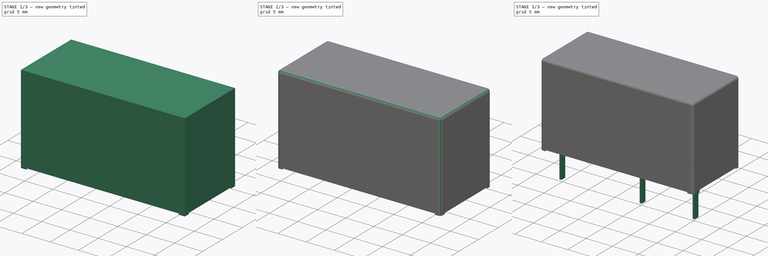
[diagram: build sequence overview — one tinted view per stage of 3, left to right]
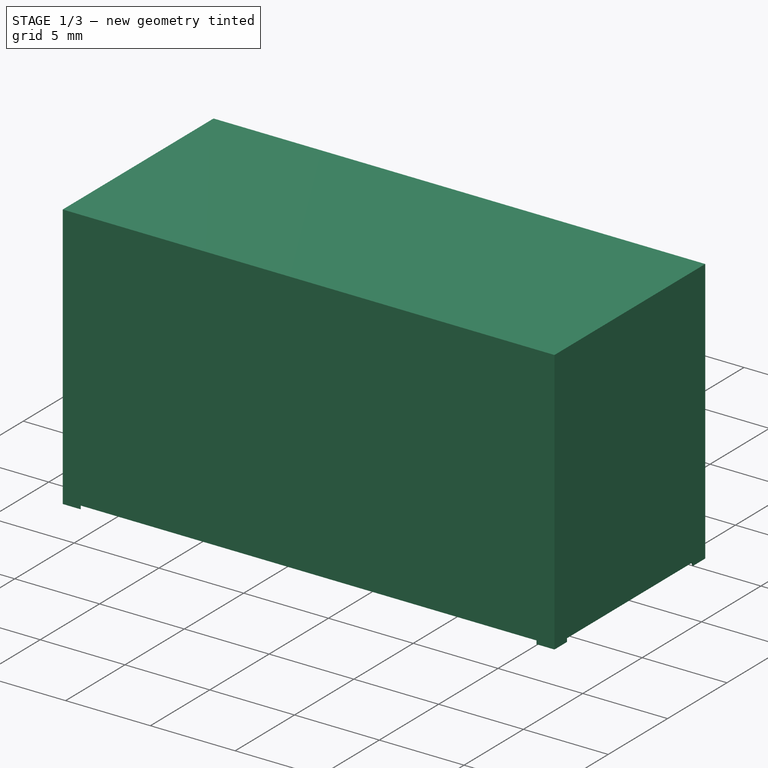
[diagram: stage 1 of 3 — iso view after this stage's code; geometry added in this stage tinted green]
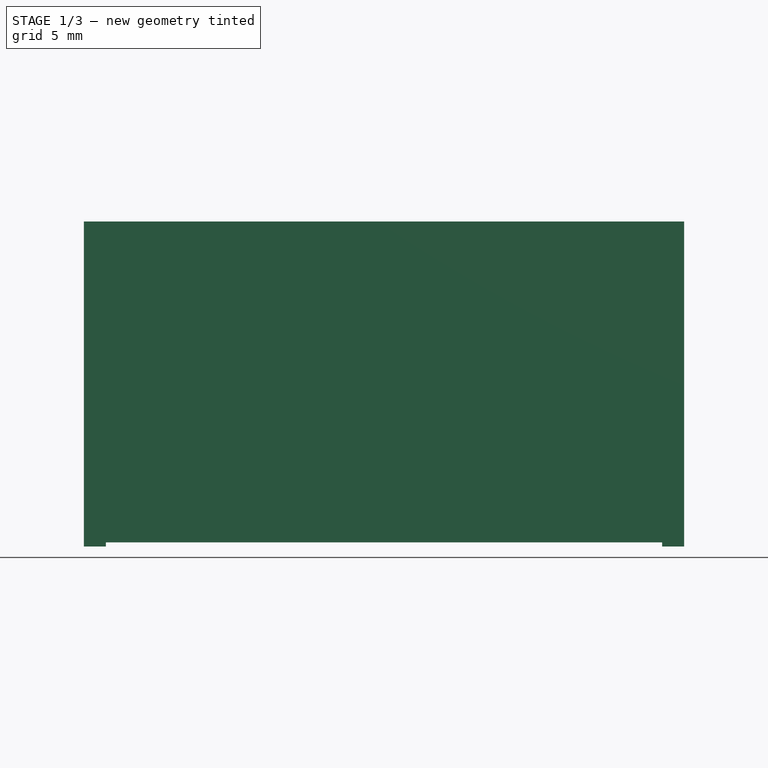
[diagram: stage 1 of 3 — front view after this stage's code; geometry added in this stage tinted green]
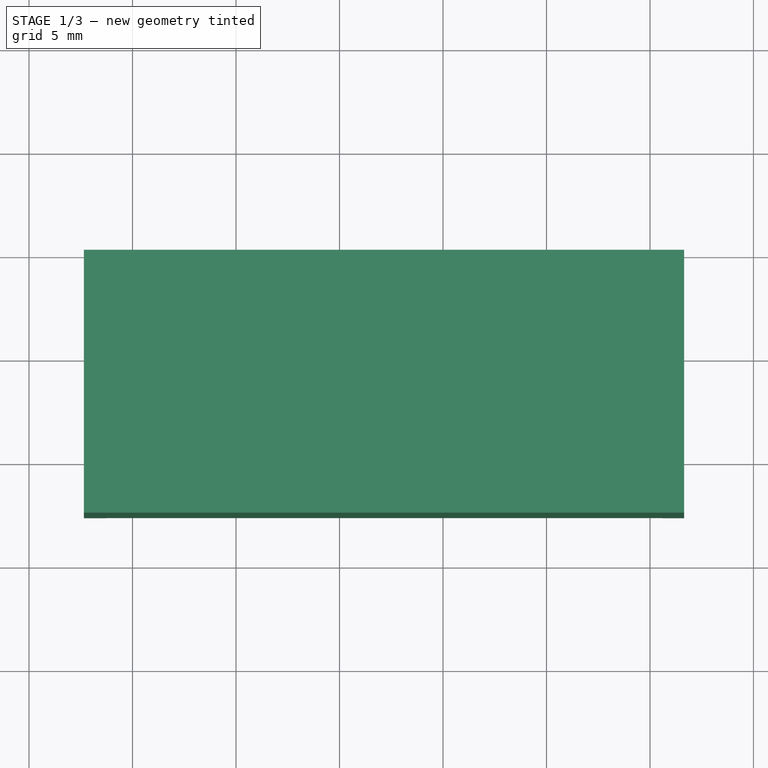
[diagram: stage 1 of 3 — top view after this stage's code; geometry added in this stage tinted green]
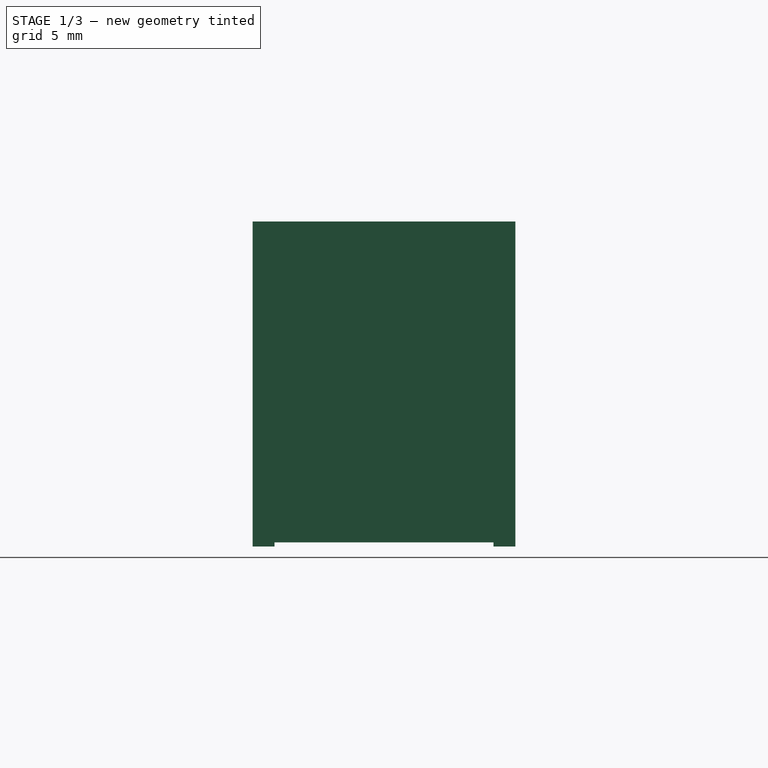
[diagram: stage 1 of 3 — right view after this stage's code; geometry added in this stage tinted green]
FCSTD DOCUMENT  (FreeCAD 0.16R6712 (Git))
Label: Relay_SPDT_Schrack-RT1-FormC_RM5mm
License: All rights reserved
LicenseURL: http://en.wikipedia.org/wiki/All_rights_reserved
objects: Sketcher::SketchObject×3, Part::Feature×3, PartDesign::Pad×2, App::DocumentObjectGroup×1, PartDesign::Pocket×1, PartDesign::Fillet×1, Part::MultiFuse×1
note: 14 computed .brp shape members not serialized (recipe doc carries the construction recipe); baked Part::Feature solids carry a one-line shape summary decoded from their .brp

FEATURE [Part::Feature] FusionAxisZ1  label="Z"
  shape: bbox 0.8 x 0.8 x 14 mm, 8 faces (baked)
FEATURE [Part::Feature] FusionAxisY1  label="Y"
  Placement = pos=(0,0,0.05) rot=(-1,0,0;1.5708rad)
  shape: bbox 0.8 x 14 x 0.8 mm, 8 faces (baked)
FEATURE [Part::Feature] FusionAxisX1  label="X"
  Placement = pos=(0,-0.05,0) rot=(0,1,0;1.5708rad)
  shape: bbox 14 x 0.8 x 0.8 mm, 8 faces (baked)
FEATURE [App::DocumentObjectGroup] axis
  Group = -> [FusionAxisZ1,FusionAxisY1,FusionAxisX1]
FEATURE [Sketcher::SketchObject] Sketch001
  expr: Constraints[8] = (12.7 - 7.5) / 2
  sketch-geometry (4):
    g0: LineSegment StartX=-2.35 StartY=-2.6 StartZ=0 EndX=26.65 EndY=-2.6 EndZ=0
    g1: LineSegment StartX=26.65 StartY=-2.6 StartZ=0 EndX=26.65 EndY=10.1 EndZ=0
    g2: LineSegment StartX=26.65 StartY=10.1 StartZ=0 EndX=-2.35 EndY=10.1 EndZ=0
    g3: LineSegment StartX=-2.35 StartY=10.1 StartZ=0 EndX=-2.35 EndY=-2.6 EndZ=0
  constraints (12):
    c: Coincident(g0,g1)
    c: Coincident(g1,g2)
    c: Coincident(g2,g3)
    c: Coincident(g3,g0)
    c: Horizontal(g0)
    c: Horizontal(g2)
    c: Vertical(g1)
    c: Vertical(g3)
    c: DistanceY(g0,g-1) = 2.6
    c: DistanceY(g3,g3) = 12.7
    c: DistanceX(g2,g2) = 29
    c: DistanceX(g0,g-1) = 2.35
FEATURE [PartDesign::Pad] Pad001
  Length = 15.7
  Length2 = 100
  Sketch = -> Sketch001
  Type = 0
FEATURE [Sketcher::SketchObject] Sketch003
  ExternalGeometry = -> [Pad001]
  Placement = pos=(0,0,0) rot=(1,0,0;3.14159rad)
  Support = -> Pad001 [Face5]
  sketch-geometry (8):
    g0: LineSegment StartX=-2.35 StartY=1.53934 StartZ=0 EndX=-1.28934 EndY=2.6 EndZ=0
    g1: LineSegment StartX=-1.28934 StartY=2.6 StartZ=0 EndX=25.5893 EndY=2.6 EndZ=0
    g2: LineSegment StartX=25.5893 StartY=2.6 StartZ=0 EndX=26.65 EndY=1.53934 EndZ=0
    g3: LineSegment StartX=26.65 StartY=1.53934 StartZ=0 EndX=26.65 EndY=-9.03934 EndZ=0
    g4: LineSegment StartX=26.65 StartY=-9.03934 StartZ=0 EndX=25.5893 EndY=-10.1 EndZ=0
    g5: LineSegment StartX=25.5893 StartY=-10.1 StartZ=0 EndX=-1.28934 EndY=-10.1 EndZ=0
    g6: LineSegment StartX=-1.28934 StartY=-10.1 StartZ=0 EndX=-2.35 EndY=-9.03934 EndZ=0
    g7: LineSegment StartX=-2.35 StartY=-9.03934 StartZ=0 EndX=-2.35 EndY=1.53934 EndZ=0
  constraints (24):
    c: Coincident(g0,g1)
    c: Coincident(g0,g7)
    c: Coincident(g1,g2)
    c: Coincident(g2,g3)
    c: Coincident(g3,g4)
    c: Coincident(g4,g5)
    c: Coincident(g5,g6)
    c: Coincident(g6,g7)
    c: Equal(g4,g2)
    c: Equal(g2,g0)
    c: Equal(g0,g6)
    c: Distance(g2) = 1.5
    c: PointOnObject(g1,g-4)
    c: PointOnObject(g0,g-4)
    c: PointOnObject(g4,g-5)
    c: PointOnObject(g5,g-5)
    c: PointOnObject(g0,g-3)
    c: PointOnObject(g6,g-3)
    c: PointOnObject(g2,g-6)
    c: PointOnObject(g3,g-6)
    c: Angle(g-6,g2) = 0.785398
    c: Angle(g-6,g4) = 2.35619
    c: Angle(g-5,g6) = 2.35619
    c: Angle(g0,g-3) = 0.785398
FEATURE [PartDesign::Pocket] Pocket001
  Length = 0.2
  Sketch = -> Sketch003
  Type = 0
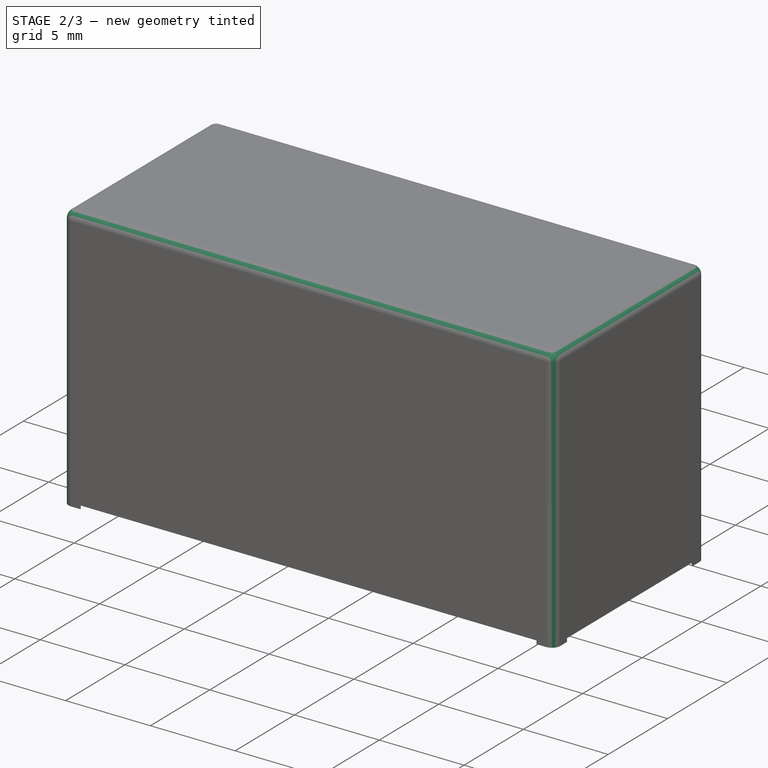
[diagram: stage 2 of 3 — iso view after this stage's code; geometry added in this stage tinted green]
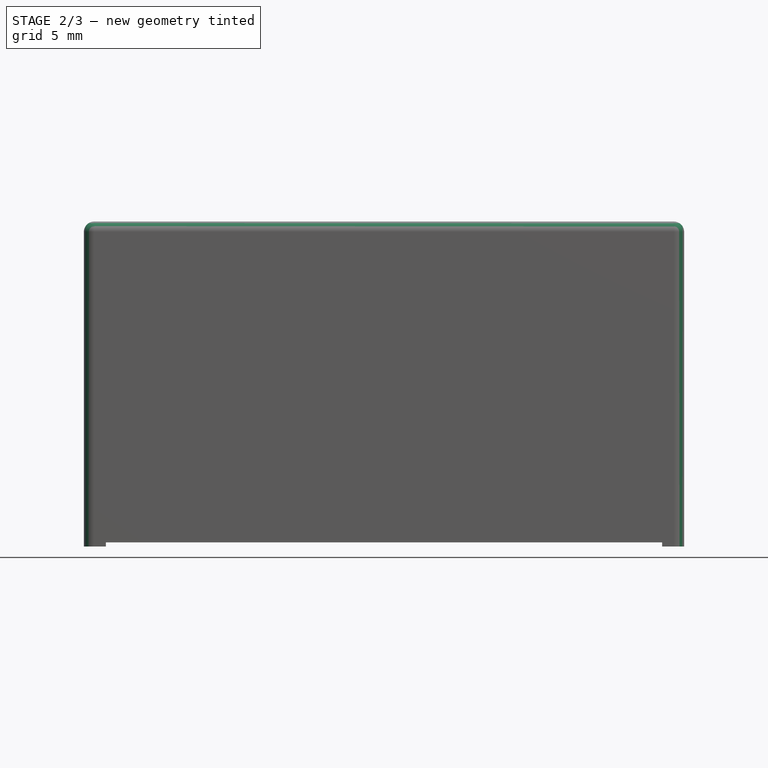
[diagram: stage 2 of 3 — front view after this stage's code; geometry added in this stage tinted green]
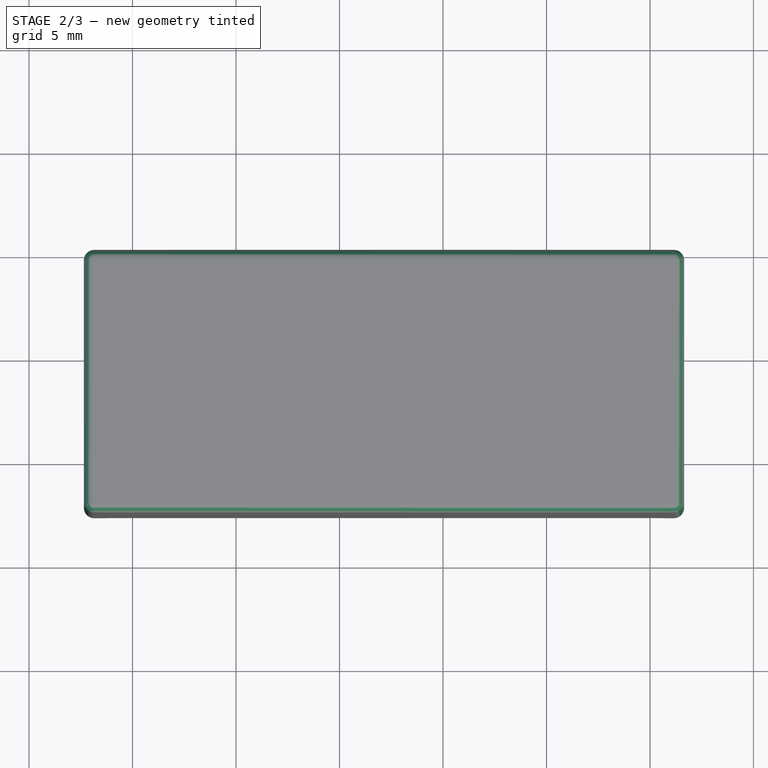
[diagram: stage 2 of 3 — top view after this stage's code; geometry added in this stage tinted green]
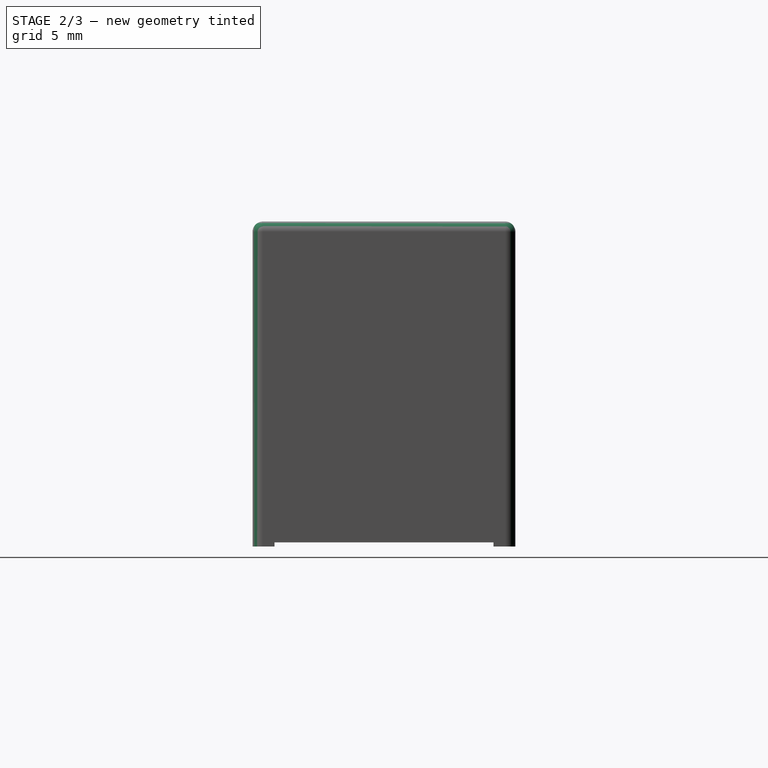
[diagram: stage 2 of 3 — right view after this stage's code; geometry added in this stage tinted green]
FEATURE [PartDesign::Fillet] Fillet
  Base = -> Pocket001 [Edge7,Edge6,Edge25,Edge24,Edge26,Edge27,Edge8,Edge30]
  Radius = 0.5
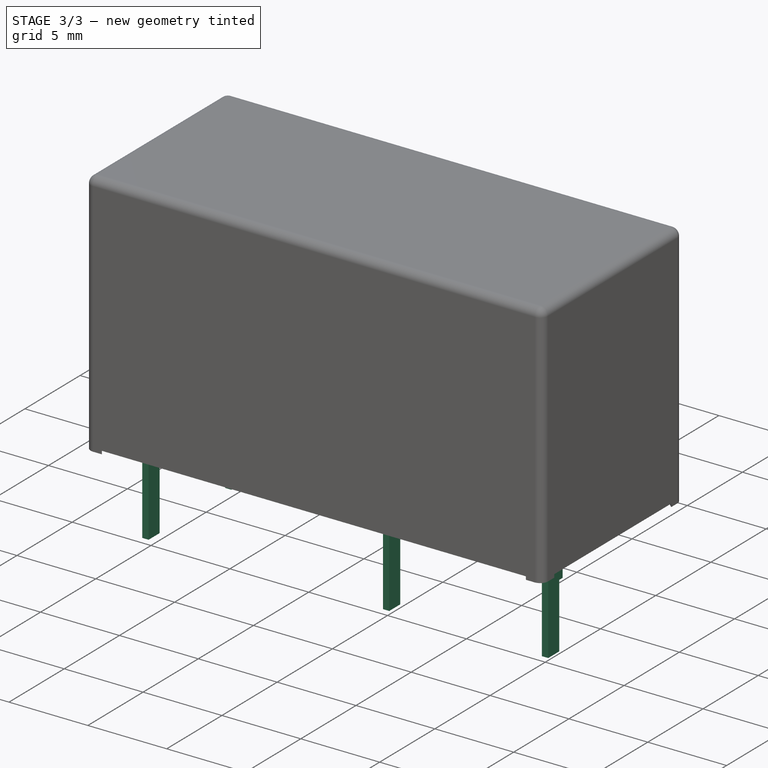
[diagram: stage 3 of 3 — iso view after this stage's code; geometry added in this stage tinted green]
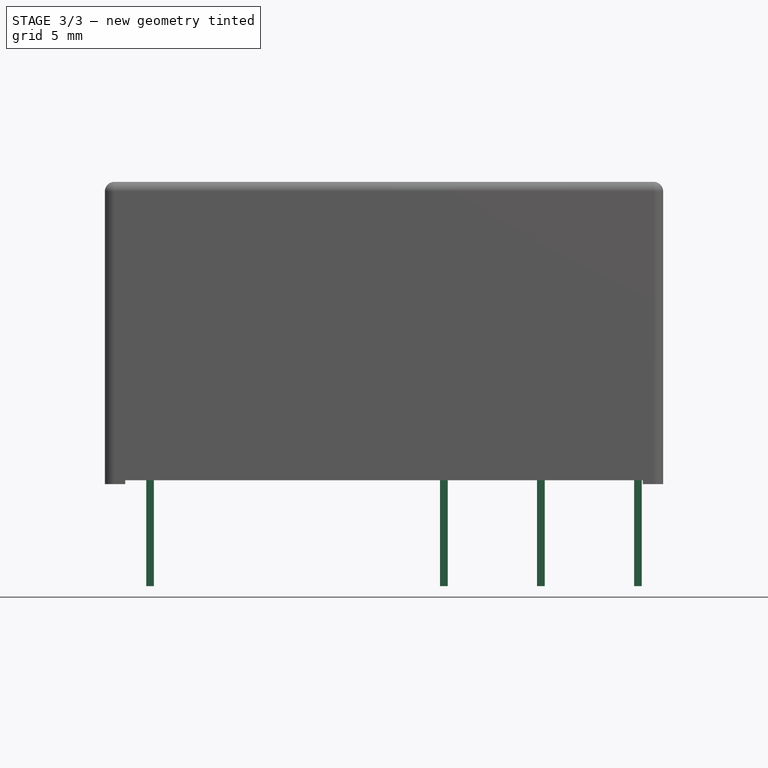
[diagram: stage 3 of 3 — front view after this stage's code; geometry added in this stage tinted green]
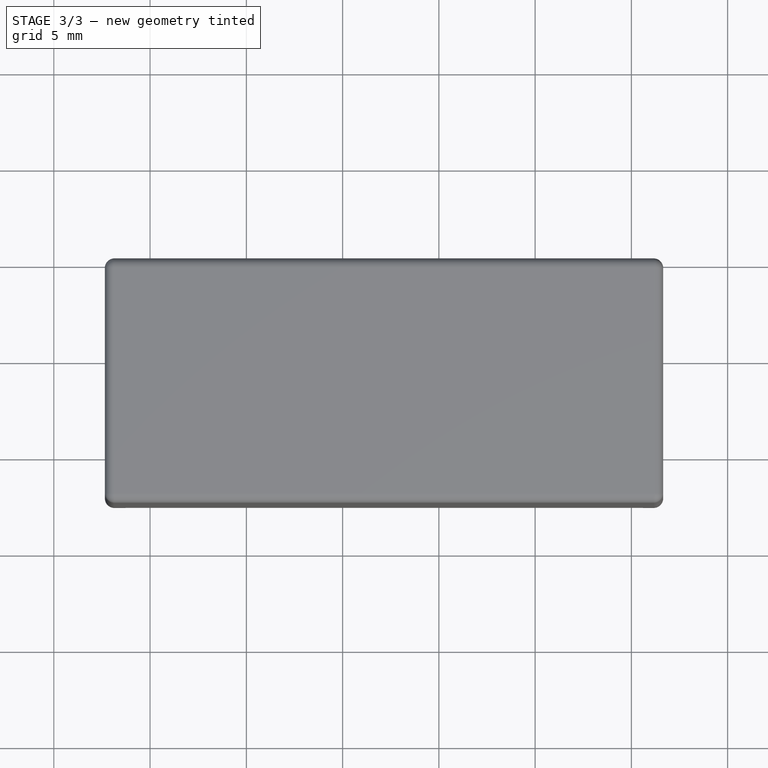
[diagram: stage 3 of 3 — top view after this stage's code; geometry added in this stage tinted green]
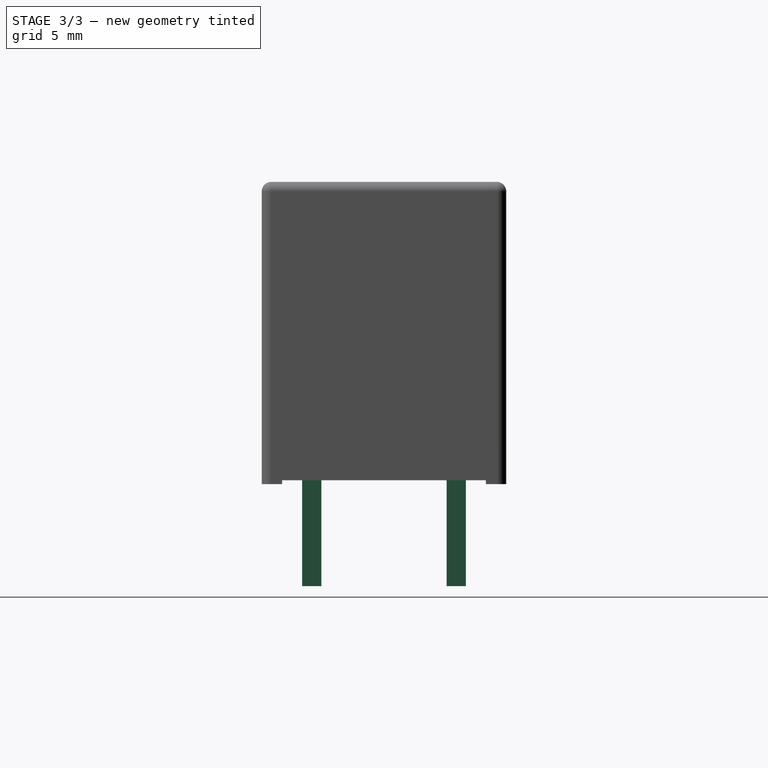
[diagram: stage 3 of 3 — right view after this stage's code; geometry added in this stage tinted green]
FEATURE [Sketcher::SketchObject] Sketch
  Placement = pos=(0,0,0.5) rot=(0,0,1;1.5708rad)
  sketch-geometry (26):
    g0: LineSegment StartX=-0.5 StartY=0.2 StartZ=0 EndX=0.5 EndY=0.2 EndZ=0
    g1: LineSegment StartX=0.5 StartY=0.2 StartZ=0 EndX=0.5 EndY=-0.2 EndZ=0
    g2: LineSegment StartX=0.5 StartY=-0.2 StartZ=0 EndX=-0.5 EndY=-0.2 EndZ=0
    g3: LineSegment StartX=-0.5 StartY=-0.2 StartZ=0 EndX=-0.5 EndY=0.2 EndZ=0
    g4: GeomPoint [constr] X=0 Y=0.2 Z=0
    g5: GeomPoint [constr] X=0.5 Y=0 Z=0
    g6: LineSegment StartX=7 StartY=0.2 StartZ=0 EndX=8 EndY=0.2 EndZ=0
    g7: LineSegment StartX=8 StartY=0.2 StartZ=0 EndX=8 EndY=-0.2 EndZ=0
    g8: LineSegment StartX=8 StartY=-0.2 StartZ=0 EndX=7 EndY=-0.2 EndZ=0
    g9: LineSegment StartX=7 StartY=-0.2 StartZ=0 EndX=7 EndY=0.2 EndZ=0
    g10: LineSegment [constr] StartX=-0.5 StartY=0 StartZ=0 EndX=-0.5 EndY=-10.7946 EndZ=0
    g11: LineSegment [constr] StartX=-0.5 StartY=-10.7946 StartZ=0 EndX=-0.5 EndY=-25.34 EndZ=0
    g12: LineSegment [constr] StartX=-0.5 StartY=0 StartZ=0 EndX=7 EndY=0 EndZ=0
    g13: LineSegment StartX=-0.5 StartY=-15.06 StartZ=0 EndX=0.5 EndY=-15.06 EndZ=0
    g14: LineSegment StartX=0.5 StartY=-15.06 StartZ=0 EndX=0.5 EndY=-15.46 EndZ=0
    g15: LineSegment StartX=0.5 StartY=-15.46 StartZ=0 EndX=-0.5 EndY=-15.46 EndZ=0
    g16: LineSegment StartX=-0.5 StartY=-15.46 StartZ=0 EndX=-0.5 EndY=-15.06 EndZ=0
    g17: LineSegment StartX=7 StartY=-20.1 StartZ=0 EndX=8 EndY=-20.1 EndZ=0
    g18: LineSegment StartX=8 StartY=-20.1 StartZ=0 EndX=8 EndY=-20.5 EndZ=0
    g19: LineSegment StartX=8 StartY=-20.5 StartZ=0 EndX=7 EndY=-20.5 EndZ=0
    g20: LineSegment StartX=7 StartY=-20.5 StartZ=0 EndX=7 EndY=-20.1 EndZ=0
    g21: LineSegment StartX=-0.5 StartY=-25.14 StartZ=0 EndX=0.5 EndY=-25.14 EndZ=0
    g22: LineSegment StartX=0.5 StartY=-25.14 StartZ=0 EndX=0.5 EndY=-25.54 EndZ=0
    g23: LineSegment StartX=0.5 StartY=-25.54 StartZ=0 EndX=-0.5 EndY=-25.54 EndZ=0
    g24: LineSegment StartX=-0.5 StartY=-25.54 StartZ=0 EndX=-0.5 EndY=-25.14 EndZ=0
    g25: LineSegment [constr] StartX=-0.5 StartY=-20.3 StartZ=0 EndX=7 EndY=-20.3 EndZ=0
  constraints (65):
    c: Coincident(g0,g1)
    c: Coincident(g1,g2)
    c: Coincident(g2,g3)
    c: Coincident(g3,g0)
    c: Horizontal(g0)
    c: Horizontal(g2)
    c: Vertical(g1)
    c: Vertical(g3)
    c: PointOnObject(g4,g0)
    c: PointOnObject(g5,g-1)
    c: Symmetric(g1,g1,g5)
    c: Symmetric(g0,g0,g4)
    c: PointOnObject(g4,g-2)
    c: DistanceY(g3,g3) = 0.4
    c: DistanceX(g0,g0) = 1
    c: Coincident(g6,g7)
    c: Coincident(g7,g8)
    c: Coincident(g8,g9)
    c: Coincident(g9,g6)
    c: Horizontal(g6)
    c: Horizontal(g8)
    c: Vertical(g7)
    c: Vertical(g9)
    c: PointOnObject(g10,g3)
    c: Symmetric(g3,g3,g10)
    c: Coincident(g12,g10)
    c: Horizontal(g12)
    c: Symmetric(g9,g9,g12)
    c: Vertical(g11)
    c: Vertical(g10)
    c: DistanceX(g12,g12) = 7.5
    c: Equal(g6,g0)
    c: DistanceY(g11,g10) = 25.34
    c: Coincident(g10,g11)
    c: Coincident(g13,g14)
    c: Coincident(g14,g15)
    c: Coincident(g15,g16)
    c: Coincident(g16,g13)
    c: Horizontal(g13)
    c: Horizontal(g15)
    c: Vertical(g14)
    c: Vertical(g16)
    c: Coincident(g17,g18)
    c: Coincident(g18,g19)
    c: Coincident(g19,g20)
    c: Coincident(g20,g17)
    c: Horizontal(g17)
    c: Horizontal(g19)
    c: Vertical(g18)
    c: Vertical(g20)
    c: Coincident(g21,g22)
    c: Coincident(g22,g23)
    c: Coincident(g23,g24)
    c: Coincident(g24,g21)
    c: Horizontal(g21)
    c: Horizontal(g23)
    c: Vertical(g22)
    c: Vertical(g24)
    c: Symmetric(g24,g24,g11)
    c: Equal(g21,g17)
    c: Equal(g17,g13)
    c: Equal(g18,g22)
    c: Horizontal(g25)
    c: Symmetric(g20,g20,g25)
    c: DistanceX(g25,g25) = 7.5
FEATURE [PartDesign::Pad] Pad
  Length = 5.8
  Length2 = 100
  Placement = pos=(0,0,0.5) rot=(0,0,1;1.5708rad)
  Reversed = true
  Sketch = -> Sketch
  Type = 0
FEATURE [Part::MultiFuse] Pad_mp_cp  label="Relay_SPDT_Schrack-RT1-FormC_RM5mm"
  Shapes = -> [Pad,Fillet]
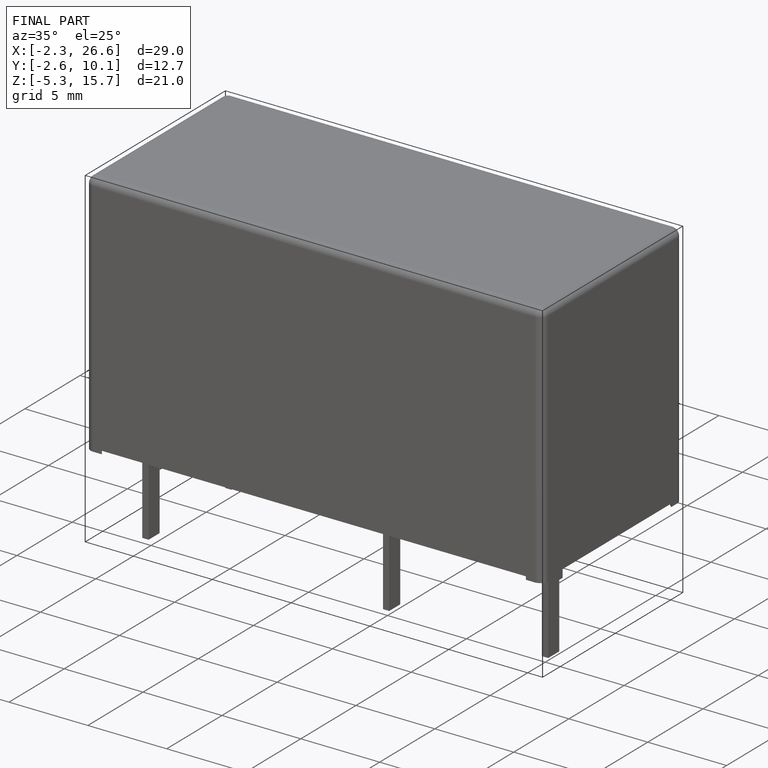
[diagram: finished part — iso view with bounding-box wireframe]
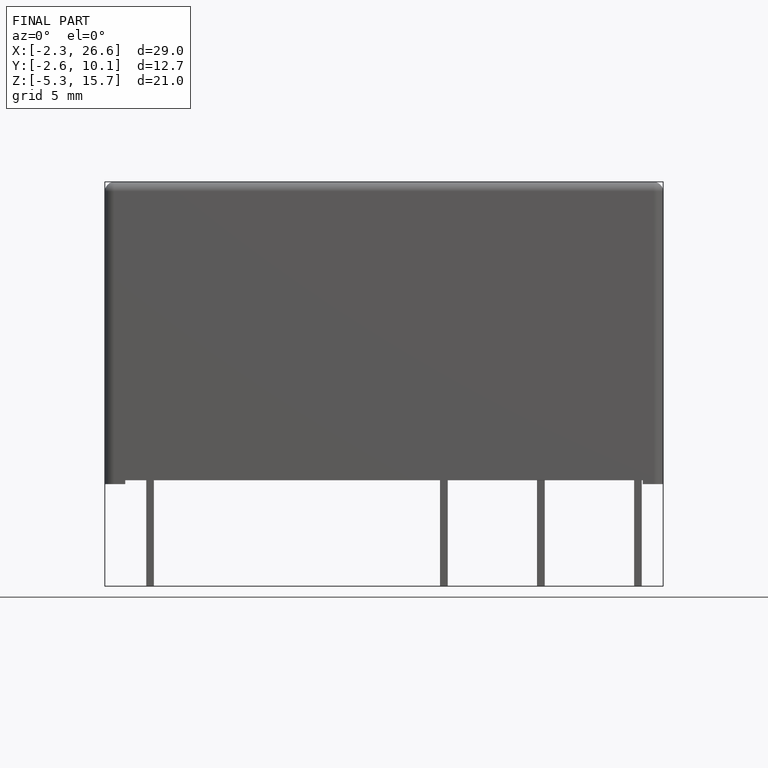
[diagram: finished part — front view with bounding-box wireframe]
